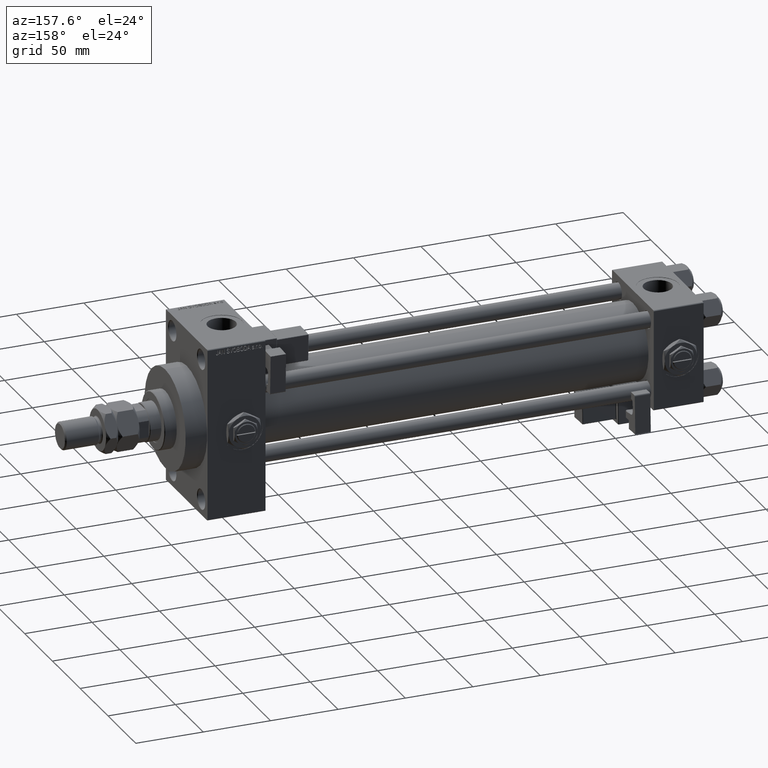
[diagram: clean part render]
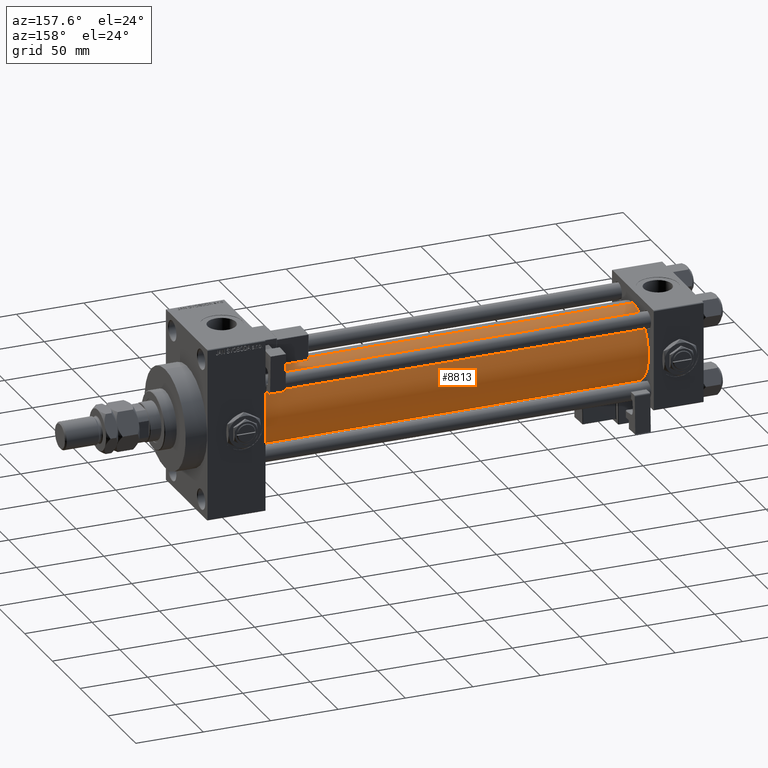
[diagram: same view with one face highlighted and labeled with its STEP entity id]
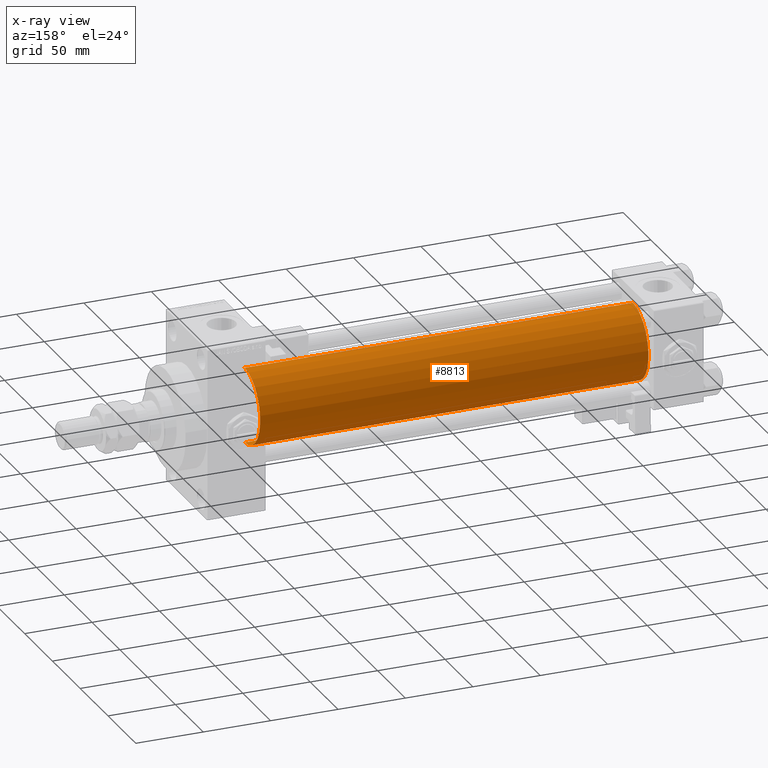
[diagram: x-ray of the same camera — body ghosted, the highlighted face saturated]
A machine part, auxiliary view. The second image highlights one B-rep face of the part: STEP entity #8813.
The next image is the same camera in x-ray: the body ghosted, the highlighted face saturated — about 0% of this face is hidden behind the body in this view.
In plain terms, the highlighted cylindrical surface (partial cylindrical patch) has radius 28 mm, axis along (-1, -0, -0).
Its self-contained STEP definition (entity closure, byte-faithful):
#995 = EDGE_CURVE ( 'NONE', #21163, #20528, #17724, .T. ) ;
#1211 = CIRCLE ( 'NONE', #32961, 28.00000000000000000 ) ;
#8813 = ADVANCED_FACE ( 'NONE', ( #36021 ), #20444, .T. ) ;
#8942 = LINE ( 'NONE', #49739, #37216 ) ;
#11756 = ORIENTED_EDGE ( 'NONE', *, *, #51983, .F. ) ;
#12133 = DIRECTION ( 'NONE',  ( 0.000000000000000000, 0.000000000000000000, 1.000000000000000000 ) ) ;
#13136 = VERTEX_POINT ( 'NONE', #35995 ) ;
#13891 = VECTOR ( 'NONE', #36237, 1000.000000000000000 ) ;
#14814 = DIRECTION ( 'NONE',  ( 1.000000000000000000, 0.000000000000000000, 0.000000000000000000 ) ) ;
#17724 = CIRCLE ( 'NONE', #48554, 28.00000000000000000 ) ;
#18477 = EDGE_CURVE ( 'NONE', #48102, #21163, #27673, .T. ) ;
#20444 = CYLINDRICAL_SURFACE ( 'NONE', #30740, 28.00000000000000000 ) ;
#20528 = VERTEX_POINT ( 'NONE', #35820 ) ;
#21163 = VERTEX_POINT ( 'NONE', #52013 ) ;
#21831 = CARTESIAN_POINT ( 'NONE',  ( 324.9999999999999432, 8.269258236473784371E-16, -28.00000000000000000 ) ) ;
#24998 = DIRECTION ( 'NONE',  ( 0.000000000000000000, 0.000000000000000000, 1.000000000000000000 ) ) ;
#27673 = LINE ( 'NONE', #28709, #13891 ) ;
#28709 = CARTESIAN_POINT ( 'NONE',  ( 324.9999999999999432, 8.269258236473784371E-16, -28.00000000000000000 ) ) ;
#29576 = DIRECTION ( 'NONE',  ( 1.000000000000000000, -0.000000000000000000, 0.000000000000000000 ) ) ;
#30740 = AXIS2_PLACEMENT_3D ( 'NONE', #52406, #48380, #12133 ) ;
#32961 = AXIS2_PLACEMENT_3D ( 'NONE', #39473, #14814, #43504 ) ;
#32970 = ORIENTED_EDGE ( 'NONE', *, *, #47742, .F. ) ;
#33587 = CARTESIAN_POINT ( 'NONE',  ( 36.99999999999997868, -2.602085213965210642E-15, 0.000000000000000000 ) ) ;
#35820 = CARTESIAN_POINT ( 'NONE',  ( 36.99999999999997868, -2.602085213965210642E-15, 28.00000000000000000 ) ) ;
#35995 = CARTESIAN_POINT ( 'NONE',  ( 324.9999999999999432, -2.602085213965210642E-15, 28.00000000000000000 ) ) ;
#36021 = FACE_OUTER_BOUND ( 'NONE', #47904, .T. ) ;
#36237 = DIRECTION ( 'NONE',  ( -1.000000000000000000, -0.000000000000000000, -0.000000000000000000 ) ) ;
#37216 = VECTOR ( 'NONE', #45160, 1000.000000000000000 ) ;
#39473 = CARTESIAN_POINT ( 'NONE',  ( 324.9999999999999432, -2.602085213965210642E-15, 0.000000000000000000 ) ) ;
#43504 = DIRECTION ( 'NONE',  ( 0.000000000000000000, 0.000000000000000000, -1.000000000000000000 ) ) ;
#45160 = DIRECTION ( 'NONE',  ( -1.000000000000000000, -0.000000000000000000, -0.000000000000000000 ) ) ;
#46640 = ORIENTED_EDGE ( 'NONE', *, *, #18477, .T. ) ;
#47178 = ORIENTED_EDGE ( 'NONE', *, *, #995, .T. ) ;
#47742 = EDGE_CURVE ( 'NONE', #48102, #13136, #1211, .T. ) ;
#47904 = EDGE_LOOP ( 'NONE', ( #32970, #46640, #47178, #11756 ) ) ;
#48102 = VERTEX_POINT ( 'NONE', #21831 ) ;
#48380 = DIRECTION ( 'NONE',  ( -1.000000000000000000, -0.000000000000000000, -0.000000000000000000 ) ) ;
#48554 = AXIS2_PLACEMENT_3D ( 'NONE', #33587, #29576, #24998 ) ;
#49739 = CARTESIAN_POINT ( 'NONE',  ( 324.9999999999999432, -2.602085213965210642E-15, 28.00000000000000000 ) ) ;
#51983 = EDGE_CURVE ( 'NONE', #13136, #20528, #8942, .T. ) ;
#52013 = CARTESIAN_POINT ( 'NONE',  ( 36.99999999999997868, 8.269258236473784371E-16, -28.00000000000000000 ) ) ;
#52406 = CARTESIAN_POINT ( 'NONE',  ( 324.9999999999999432, -2.602085213965210642E-15, 0.000000000000000000 ) ) ;